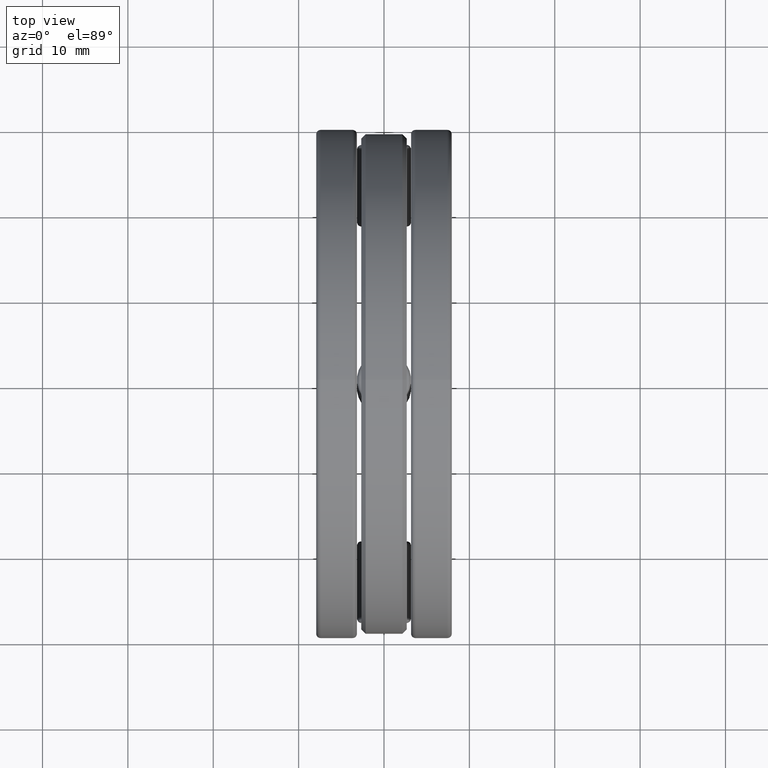
[diagram: clean part render]
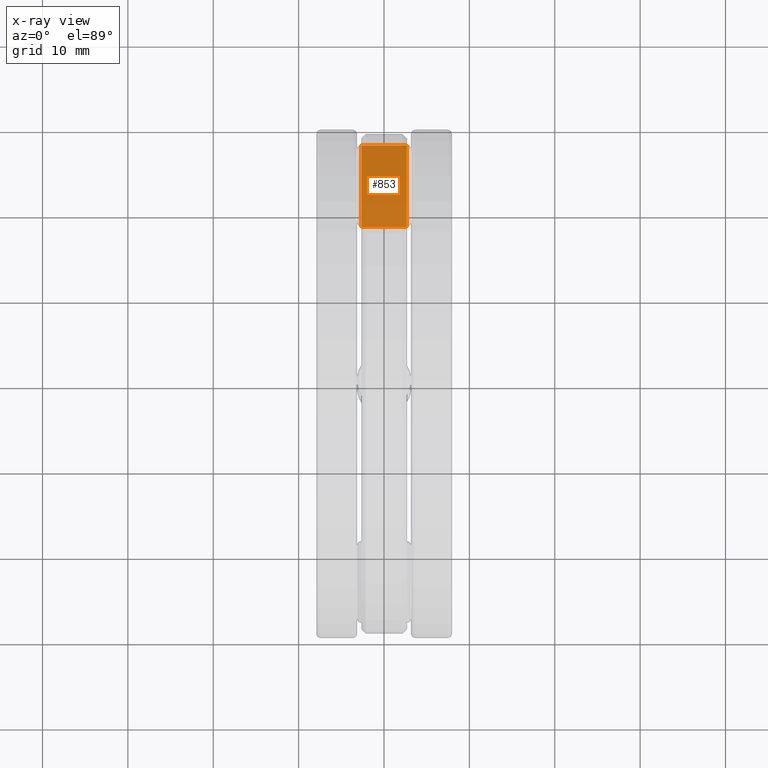
[diagram: x-ray — body ghosted, one internal face saturated and labeled with its STEP entity id]
A machine part, top view, then the same camera in x-ray: the body is ghosted and one INTERNAL B-rep face — a face not visible from any outside direction — is saturated and labeled: STEP entity #853.
In plain terms, the highlighted planar face has unit normal (0, 0, -1).
Its self-contained STEP definition (entity closure, byte-faithful):
#19 = CARTESIAN_POINT ( 'NONE',  ( -0.3125000000000000000, 0.7262500000000000600, -0.1250000000000000000 ) ) ;
#115 = CARTESIAN_POINT ( 'NONE',  ( -0.3125000000000000000, 0.7262500000000000600, -0.1250000000000000000 ) ) ;
#147 = LINE ( 'NONE', #1323, #1004 ) ;
#212 = VERTEX_POINT ( 'NONE', #1331 ) ;
#280 = CARTESIAN_POINT ( 'NONE',  ( -0.3125000000000000000, 1.101875000000000200, -0.1249999999999999900 ) ) ;
#287 = DIRECTION ( 'NONE',  ( 1.000000000000000000, -0.0000000000000000000, -0.0000000000000000000 ) ) ;
#340 = EDGE_LOOP ( 'NONE', ( #759, #1459, #614, #1468 ) ) ;
#453 = DIRECTION ( 'NONE',  ( -0.0000000000000000000, 1.000000000000000000, 4.545504149191785600E-017 ) ) ;
#462 = DIRECTION ( 'NONE',  ( 1.000000000000000000, -0.0000000000000000000, -0.0000000000000000000 ) ) ;
#499 = VECTOR ( 'NONE', #462, 39.37007874015748100 ) ;
#535 = VECTOR ( 'NONE', #453, 39.37007874015748100 ) ;
#549 = LINE ( 'NONE', #280, #1126 ) ;
#560 = CARTESIAN_POINT ( 'NONE',  ( -0.1049999999999999500, -1.077975765194627100E-017, -0.1250000000000000300 ) ) ;
#573 = VERTEX_POINT ( 'NONE', #1106 ) ;
#592 = EDGE_CURVE ( 'NONE', #573, #1305, #147, .T. ) ;
#607 = FACE_OUTER_BOUND ( 'NONE', #340, .T. ) ;
#614 = ORIENTED_EDGE ( 'NONE', *, *, #729, .F. ) ;
#694 = LINE ( 'NONE', #19, #499 ) ;
#729 = EDGE_CURVE ( 'NONE', #212, #1065, #772, .T. ) ;
#759 = ORIENTED_EDGE ( 'NONE', *, *, #592, .T. ) ;
#763 = DIRECTION ( 'NONE',  ( -0.0000000000000000000, 1.000000000000000000, 4.545504149191785600E-017 ) ) ;
#772 = LINE ( 'NONE', #560, #535 ) ;
#853 = ADVANCED_FACE ( 'NONE', ( #607 ), #888, .F. ) ;
#888 = PLANE ( 'NONE',  #1287 ) ;
#927 = CARTESIAN_POINT ( 'NONE',  ( -0.1049999999999999700, 1.101875000000000200, -0.1249999999999999900 ) ) ;
#931 = EDGE_CURVE ( 'NONE', #212, #573, #694, .T. ) ;
#1004 = VECTOR ( 'NONE', #763, 39.37007874015748100 ) ;
#1018 = DIRECTION ( 'NONE',  ( 0.0000000000000000000, 4.545504149191785600E-017, -1.000000000000000000 ) ) ;
#1065 = VERTEX_POINT ( 'NONE', #927 ) ;
#1106 = CARTESIAN_POINT ( 'NONE',  ( 0.1049999999999999700, 0.7262500000000000600, -0.1250000000000000000 ) ) ;
#1126 = VECTOR ( 'NONE', #287, 39.37007874015748100 ) ;
#1137 = DIRECTION ( 'NONE',  ( 0.0000000000000000000, 1.000000000000000000, 4.545504149191785600E-017 ) ) ;
#1287 = AXIS2_PLACEMENT_3D ( 'NONE', #115, #1018, #1137 ) ;
#1305 = VERTEX_POINT ( 'NONE', #1422 ) ;
#1323 = CARTESIAN_POINT ( 'NONE',  ( 0.1050000000000000100, 1.802810856531676800E-017, -0.1250000000000000300 ) ) ;
#1331 = CARTESIAN_POINT ( 'NONE',  ( -0.1049999999999999700, 0.7262500000000000600, -0.1250000000000000000 ) ) ;
#1359 = EDGE_CURVE ( 'NONE', #1065, #1305, #549, .T. ) ;
#1422 = CARTESIAN_POINT ( 'NONE',  ( 0.1049999999999999700, 1.101875000000000200, -0.1249999999999999900 ) ) ;
#1459 = ORIENTED_EDGE ( 'NONE', *, *, #1359, .F. ) ;
#1468 = ORIENTED_EDGE ( 'NONE', *, *, #931, .T. ) ;